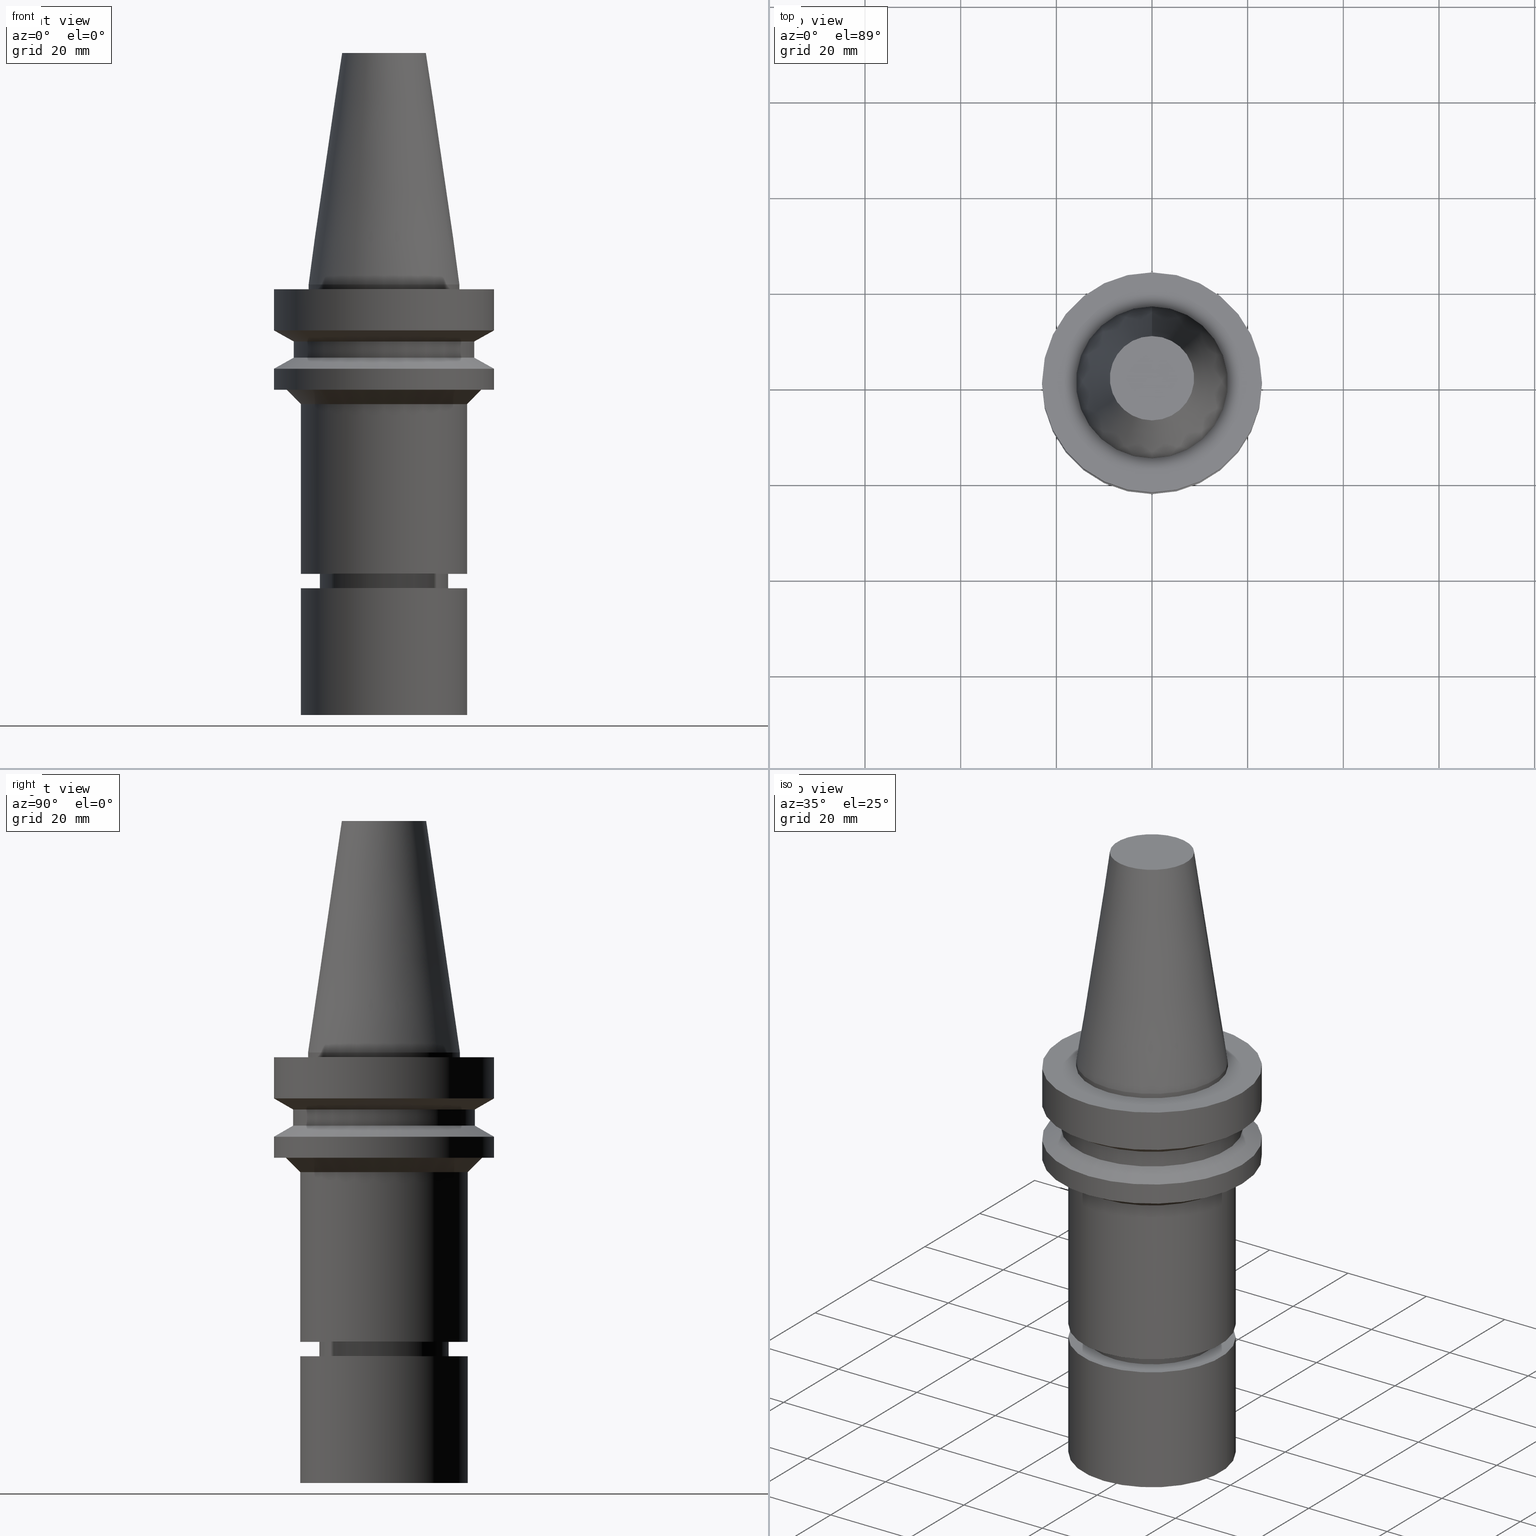
[diagram: canonical four-view strip — front | top / right | iso, engineering-drawing reading convention]
A machine part, canonical four-view strip (front | top / right | iso — engineering-drawing reading convention). The complete STEP part file that produces these views, byte-faithful:
ISO-10303-21;
HEADER;
FILE_DESCRIPTION((''),'1');
FILE_NAME('V:/90_\X2\53D65F9730C730FC30BF\X0\/00_\X2\6DE18DEF30C730FC30BF\X0\/ALL/BBT-BKUS\X2\FF76FF80FF9BFF78FF9E752852A05DE556F3\X0\201801/BBT30-MEGAER/BBT30-MEGAER20-90NL.stp','2018-02-02T07:19:43',(''),(''),'Spatial Interop R21 SP3','Kubotek KeyCreator 2011 V10.0.2 (22737)',' ');
FILE_SCHEMA(('automotive_design'));
ENDSEC;
DATA;
#1=MECHANICAL_DESIGN_GEOMETRIC_PRESENTATION_REPRESENTATION(' ',(#14,#15,#16,#17,#18,#19,#20,#21,#22,#23,#24,#25,#26,#27,#28,#29,#30,#31,#32,#33,#34,#35,#36,#37,#38,#39,#40,#41,#42,#43,#44,#45,#46,#47,#48,#49,#50,#51,#52,#53,#54,#55),#10);
#2=PRODUCT_DEFINITION_CONTEXT('',#56,'design');
#3=APPLICATION_PROTOCOL_DEFINITION('INTERNATIONAL STANDARD','automotive_design',1994,#56);
#4=PRODUCT_CATEGORY_RELATIONSHIP('NONE','NONE',#57,#58);
#5=SHAPE_DEFINITION_REPRESENTATION(#59,#60);
#6=PRODUCT_DEFINITION_CONTEXT('',#61,'design');
#7=APPLICATION_PROTOCOL_DEFINITION('INTERNATIONAL STANDARD','automotive_design',1994,#61);
#8=PRODUCT_CATEGORY_RELATIONSHIP('NONE','NONE',#62,#63);
#9=SHAPE_DEFINITION_REPRESENTATION(#64,#65);
#10= (GEOMETRIC_REPRESENTATION_CONTEXT(3)GLOBAL_UNCERTAINTY_ASSIGNED_CONTEXT((#68))GLOBAL_UNIT_ASSIGNED_CONTEXT((#70,#71,#72))REPRESENTATION_CONTEXT('NONE','WORKSPACE'));
#14=STYLED_ITEM('',(#74),#75);
#15=STYLED_ITEM('',(#76,#77),#78);
#16=STYLED_ITEM('',(#79),#80);
#17=STYLED_ITEM('',(#81),#82);
#18=STYLED_ITEM('',(#83,#84),#85);
#19=STYLED_ITEM('',(#86,#87),#88);
#20=STYLED_ITEM('',(#89),#90);
#21=STYLED_ITEM('',(#91),#92);
#22=STYLED_ITEM('',(#93),#94);
#23=STYLED_ITEM('',(#95,#96),#97);
#24=STYLED_ITEM('',(#98,#99),#100);
#25=STYLED_ITEM('',(#101,#102),#103);
#26=STYLED_ITEM('',(#104,#105),#106);
#27=STYLED_ITEM('',(#107,#108),#109);
#28=STYLED_ITEM('',(#110,#111),#112);
#29=STYLED_ITEM('',(#113,#114),#115);
#30=STYLED_ITEM('',(#116,#117),#118);
#31=STYLED_ITEM('',(#119),#120);
#32=STYLED_ITEM('',(#121,#122),#123);
#33=STYLED_ITEM('',(#124,#125),#126);
#34=STYLED_ITEM('',(#127),#128);
#35=STYLED_ITEM('',(#129),#130);
#36=STYLED_ITEM('',(#131),#132);
#37=STYLED_ITEM('',(#133),#134);
#38=STYLED_ITEM('',(#135),#136);
#39=STYLED_ITEM('',(#137,#138),#139);
#40=STYLED_ITEM('',(#140,#141),#142);
#41=STYLED_ITEM('',(#143),#144);
#42=STYLED_ITEM('',(#145),#146);
#43=STYLED_ITEM('',(#147,#148),#149);
#44=STYLED_ITEM('',(#150,#151),#152);
#45=STYLED_ITEM('',(#153,#154),#155);
#46=STYLED_ITEM('',(#156),#157);
#47=STYLED_ITEM('',(#158),#159);
#48=STYLED_ITEM('',(#160),#161);
#49=STYLED_ITEM('',(#162),#163);
#50=STYLED_ITEM('',(#164,#165),#166);
#51=STYLED_ITEM('',(#167,#168),#169);
#52=STYLED_ITEM('',(#170,#171),#172);
#53=STYLED_ITEM('',(#173,#174),#175);
#54=STYLED_ITEM('',(#176,#177),#178);
#55=STYLED_ITEM('',(#179),#180);
#56=APPLICATION_CONTEXT(' ');
#57=PRODUCT_CATEGORY('part','NONE');
#58=PRODUCT_RELATED_PRODUCT_CATEGORY('detail',' ',(#181));
#59=PRODUCT_DEFINITION_SHAPE('NONE','NONE',#182);
#60=ADVANCED_BREP_SHAPE_REPRESENTATION('Unnamed[1]',(#85,#183),#10);
#61=APPLICATION_CONTEXT(' ');
#62=PRODUCT_CATEGORY('part','NONE');
#63=PRODUCT_RELATED_PRODUCT_CATEGORY('detail',' ',(#184));
#64=PRODUCT_DEFINITION_SHAPE('NONE','NONE',#185);
#65=ADVANCED_BREP_SHAPE_REPRESENTATION('Unnamed[1]',(#175,#186),#10);
#68=UNCERTAINTY_MEASURE_WITH_UNIT(LENGTH_MEASURE(1.0E-006),#70,'','');
#70= (CONVERSION_BASED_UNIT('MILLIMETRE',#189)LENGTH_UNIT()NAMED_UNIT(#192));
#71= (NAMED_UNIT(#194)PLANE_ANGLE_UNIT()SI_UNIT($,.RADIAN.));
#72= (NAMED_UNIT(#194)SOLID_ANGLE_UNIT()SI_UNIT($,.STERADIAN.));
#74=PRESENTATION_STYLE_ASSIGNMENT((#200));
#75=EDGE_CURVE('Unnamed[1]',#201,#201,#202,.T.);
#76=PRESENTATION_STYLE_ASSIGNMENT((#203));
#77=PRESENTATION_STYLE_ASSIGNMENT((#204));
#78=ADVANCED_FACE('Unnamed[1]',(#205,#206),#207,.T.);
#79=PRESENTATION_STYLE_ASSIGNMENT((#208));
#80=EDGE_CURVE('Unnamed[1]',#209,#209,#210,.T.);
#81=PRESENTATION_STYLE_ASSIGNMENT((#211));
#82=EDGE_CURVE('Unnamed[1]',#212,#212,#213,.T.);
#83=PRESENTATION_STYLE_ASSIGNMENT((#214));
#84=PRESENTATION_STYLE_ASSIGNMENT((#215));
#85=MANIFOLD_SOLID_BREP('Unnamed[1]',#216);
#86=PRESENTATION_STYLE_ASSIGNMENT((#217));
#87=PRESENTATION_STYLE_ASSIGNMENT((#218));
#88=ADVANCED_FACE('Unnamed[1]',(#219,#220),#221,.T.);
#89=PRESENTATION_STYLE_ASSIGNMENT((#222));
#90=EDGE_CURVE('Unnamed[1]',#223,#223,#224,.T.);
#91=PRESENTATION_STYLE_ASSIGNMENT((#225));
#92=EDGE_CURVE('Unnamed[1]',#226,#226,#227,.T.);
#93=PRESENTATION_STYLE_ASSIGNMENT((#228));
#94=EDGE_CURVE('Unnamed[1]',#229,#229,#230,.T.);
#95=PRESENTATION_STYLE_ASSIGNMENT((#231));
#96=PRESENTATION_STYLE_ASSIGNMENT((#232));
#97=ADVANCED_FACE('Unnamed[1]',(#233,#234),#235,.T.);
#98=PRESENTATION_STYLE_ASSIGNMENT((#236));
#99=PRESENTATION_STYLE_ASSIGNMENT((#237));
#100=ADVANCED_FACE('Unnamed[1]',(#238,#239),#240,.T.);
#101=PRESENTATION_STYLE_ASSIGNMENT((#241));
#102=PRESENTATION_STYLE_ASSIGNMENT((#242));
#103=ADVANCED_FACE('Unnamed[1]',(#243),#244,.T.);
#104=PRESENTATION_STYLE_ASSIGNMENT((#245));
#105=PRESENTATION_STYLE_ASSIGNMENT((#246));
#106=ADVANCED_FACE('Unnamed[1]',(#247,#248),#249,.T.);
#107=PRESENTATION_STYLE_ASSIGNMENT((#250));
#108=PRESENTATION_STYLE_ASSIGNMENT((#251));
#109=ADVANCED_FACE('Unnamed[1]',(#252,#253),#254,.T.);
#110=PRESENTATION_STYLE_ASSIGNMENT((#255));
#111=PRESENTATION_STYLE_ASSIGNMENT((#256));
#112=ADVANCED_FACE('Unnamed[1]',(#257,#258),#259,.T.);
#113=PRESENTATION_STYLE_ASSIGNMENT((#260));
#114=PRESENTATION_STYLE_ASSIGNMENT((#261));
#115=ADVANCED_FACE('Unnamed[1]',(#262,#263),#264,.T.);
#116=PRESENTATION_STYLE_ASSIGNMENT((#265));
#117=PRESENTATION_STYLE_ASSIGNMENT((#266));
#118=ADVANCED_FACE('Unnamed[1]',(#267,#268),#269,.T.);
#119=PRESENTATION_STYLE_ASSIGNMENT((#270));
#120=EDGE_CURVE('Unnamed[1]',#271,#271,#272,.T.);
#121=PRESENTATION_STYLE_ASSIGNMENT((#273));
#122=PRESENTATION_STYLE_ASSIGNMENT((#274));
#123=ADVANCED_FACE('Unnamed[1]',(#275,#276),#277,.T.);
#124=PRESENTATION_STYLE_ASSIGNMENT((#278));
#125=PRESENTATION_STYLE_ASSIGNMENT((#279));
#126=ADVANCED_FACE('Unnamed[1]',(#280),#281,.T.);
#127=PRESENTATION_STYLE_ASSIGNMENT((#282));
#128=EDGE_CURVE('Unnamed[1]',#283,#283,#284,.T.);
#129=PRESENTATION_STYLE_ASSIGNMENT((#285));
#130=EDGE_CURVE('Unnamed[1]',#286,#286,#287,.T.);
#131=PRESENTATION_STYLE_ASSIGNMENT((#288));
#132=EDGE_CURVE('Unnamed[1]',#289,#289,#290,.T.);
#133=PRESENTATION_STYLE_ASSIGNMENT((#291));
#134=EDGE_CURVE('Unnamed[1]',#292,#292,#293,.T.);
#135=PRESENTATION_STYLE_ASSIGNMENT((#294));
#136=EDGE_CURVE('Unnamed[1]',#295,#295,#296,.T.);
#137=PRESENTATION_STYLE_ASSIGNMENT((#297));
#138=PRESENTATION_STYLE_ASSIGNMENT((#298));
#139=ADVANCED_FACE('Unnamed[1]',(#299,#300),#301,.T.);
#140=PRESENTATION_STYLE_ASSIGNMENT((#302));
#141=PRESENTATION_STYLE_ASSIGNMENT((#303));
#142=ADVANCED_FACE('Unnamed[1]',(#304,#305),#306,.T.);
#143=PRESENTATION_STYLE_ASSIGNMENT((#307));
#144=EDGE_CURVE('Unnamed[1]',#308,#308,#309,.T.);
#145=PRESENTATION_STYLE_ASSIGNMENT((#310));
#146=EDGE_CURVE('Unnamed[1]',#311,#311,#312,.T.);
#147=PRESENTATION_STYLE_ASSIGNMENT((#313));
#148=PRESENTATION_STYLE_ASSIGNMENT((#314));
#149=ADVANCED_FACE('Unnamed[1]',(#315,#316),#317,.T.);
#150=PRESENTATION_STYLE_ASSIGNMENT((#318));
#151=PRESENTATION_STYLE_ASSIGNMENT((#319));
#152=ADVANCED_FACE('Unnamed[1]',(#320,#321),#322,.T.);
#153=PRESENTATION_STYLE_ASSIGNMENT((#323));
#154=PRESENTATION_STYLE_ASSIGNMENT((#324));
#155=ADVANCED_FACE('Unnamed[1]',(#325,#326),#327,.T.);
#156=PRESENTATION_STYLE_ASSIGNMENT((#328));
#157=EDGE_CURVE('Unnamed[1]',#329,#329,#330,.T.);
#158=PRESENTATION_STYLE_ASSIGNMENT((#331));
#159=EDGE_CURVE('Unnamed[1]',#332,#332,#333,.T.);
#160=PRESENTATION_STYLE_ASSIGNMENT((#334));
#161=EDGE_CURVE('Unnamed[1]',#335,#335,#336,.T.);
#162=PRESENTATION_STYLE_ASSIGNMENT((#337));
#163=EDGE_CURVE('Unnamed[1]',#338,#338,#339,.T.);
#164=PRESENTATION_STYLE_ASSIGNMENT((#340));
#165=PRESENTATION_STYLE_ASSIGNMENT((#341));
#166=ADVANCED_FACE('Unnamed[1]',(#342,#343),#344,.T.);
#167=PRESENTATION_STYLE_ASSIGNMENT((#345));
#168=PRESENTATION_STYLE_ASSIGNMENT((#346));
#169=ADVANCED_FACE('Unnamed[1]',(#347),#348,.T.);
#170=PRESENTATION_STYLE_ASSIGNMENT((#349));
#171=PRESENTATION_STYLE_ASSIGNMENT((#350));
#172=ADVANCED_FACE('Unnamed[1]',(#351,#352),#353,.T.);
#173=PRESENTATION_STYLE_ASSIGNMENT((#354));
#174=PRESENTATION_STYLE_ASSIGNMENT((#355));
#175=MANIFOLD_SOLID_BREP('Unnamed[1]',#356);
#176=PRESENTATION_STYLE_ASSIGNMENT((#357));
#177=PRESENTATION_STYLE_ASSIGNMENT((#358));
#178=ADVANCED_FACE('Unnamed[1]',(#359),#360,.T.);
#179=PRESENTATION_STYLE_ASSIGNMENT((#361));
#180=EDGE_CURVE('Unnamed[1]',#362,#362,#363,.T.);
#181=PRODUCT('Unnamed[1]','Unnamed[1]','PART-Unnamed[1]-DESC',(#364));
#182=PRODUCT_DEFINITION('NONE','NONE',#365,#2);
#183=AXIS2_PLACEMENT_3D('',#366,#367,#368);
#184=PRODUCT('Unnamed[1]','Unnamed[1]','PART-Unnamed[1]-DESC',(#369));
#185=PRODUCT_DEFINITION('NONE','NONE',#370,#6);
#186=AXIS2_PLACEMENT_3D('',#371,#372,#373);
#189=LENGTH_MEASURE_WITH_UNIT(LENGTH_MEASURE(1.0),#374);
#192=DIMENSIONAL_EXPONENTS(1.0,0.0,0.0,0.0,0.0,0.0,0.0);
#194=DIMENSIONAL_EXPONENTS(0.0,0.0,0.0,0.0,0.0,0.0,0.0);
#200=CURVE_STYLE('',#375,POSITIVE_LENGTH_MEASURE(1000.0),#376);
#201=VERTEX_POINT('',#377);
#202=CIRCLE('',#378,13.4999999999908);
#203=SURFACE_STYLE_USAGE(.BOTH.,#379);
#204=CURVE_STYLE('',#380,POSITIVE_LENGTH_MEASURE(1000.0),#381);
#205=FACE_BOUND('',#382,.T.);
#206=FACE_OUTER_BOUND('',#383,.T.);
#207=PLANE('',#384);
#208=CURVE_STYLE('',#385,POSITIVE_LENGTH_MEASURE(1000.0),#386);
#209=VERTEX_POINT('',#387);
#210=CIRCLE('',#388,12.4999999999999);
#211=CURVE_STYLE('',#389,POSITIVE_LENGTH_MEASURE(1000.0),#390);
#212=VERTEX_POINT('',#391);
#213=CIRCLE('',#392,23.0);
#214=SURFACE_STYLE_USAGE(.BOTH.,#393);
#215=CURVE_STYLE('',#394,POSITIVE_LENGTH_MEASURE(1000.0),#395);
#216=CLOSED_SHELL('',(#178,#97,#142,#123,#112,#139,#88,#172,#100,#78,#166,#149,#109,#118,#152,#155,#115,#126));
#217=SURFACE_STYLE_USAGE(.BOTH.,#396);
#218=CURVE_STYLE('',#397,POSITIVE_LENGTH_MEASURE(1000.0),#398);
#219=FACE_BOUND('',#399,.T.);
#220=FACE_BOUND('',#400,.T.);
#221=CYLINDRICAL_SURFACE('',#401,19.0);
#222=CURVE_STYLE('',#402,POSITIVE_LENGTH_MEASURE(1000.0),#403);
#223=VERTEX_POINT('',#404);
#224=CIRCLE('',#405,11.3999999999978);
#225=CURVE_STYLE('',#406,POSITIVE_LENGTH_MEASURE(1000.0),#407);
#226=VERTEX_POINT('',#408);
#227=CIRCLE('',#409,15.875);
#228=CURVE_STYLE('',#410,POSITIVE_LENGTH_MEASURE(1000.0),#411);
#229=VERTEX_POINT('',#412);
#230=CIRCLE('',#413,17.5);
#231=SURFACE_STYLE_USAGE(.BOTH.,#414);
#232=CURVE_STYLE('',#415,POSITIVE_LENGTH_MEASURE(1000.0),#416);
#233=FACE_BOUND('',#417,.T.);
#234=FACE_BOUND('',#418,.T.);
#235=CONICAL_SURFACE('',#419,12.3457500009933,0.144815870013618);
#236=SURFACE_STYLE_USAGE(.BOTH.,#420);
#237=CURVE_STYLE('',#421,POSITIVE_LENGTH_MEASURE(1000.0),#422);
#238=FACE_BOUND('',#423,.T.);
#239=FACE_BOUND('',#424,.T.);
#240=CYLINDRICAL_SURFACE('',#425,23.0);
#241=SURFACE_STYLE_USAGE(.BOTH.,#426);
#242=CURVE_STYLE('',#427,POSITIVE_LENGTH_MEASURE(1000.0),#428);
#243=FACE_OUTER_BOUND('',#429,.T.);
#244=PLANE('',#430);
#245=SURFACE_STYLE_USAGE(.BOTH.,#431);
#246=CURVE_STYLE('',#432,POSITIVE_LENGTH_MEASURE(1000.0),#433);
#247=FACE_BOUND('',#434,.T.);
#248=FACE_BOUND('',#435,.T.);
#249=CYLINDRICAL_SURFACE('',#436,17.5);
#250=SURFACE_STYLE_USAGE(.BOTH.,#437);
#251=CURVE_STYLE('',#438,POSITIVE_LENGTH_MEASURE(1000.0),#439);
#252=FACE_BOUND('',#440,.T.);
#253=FACE_OUTER_BOUND('',#441,.T.);
#254=PLANE('',#442);
#255=SURFACE_STYLE_USAGE(.BOTH.,#443);
#256=CURVE_STYLE('',#444,POSITIVE_LENGTH_MEASURE(1000.0),#445);
#257=FACE_BOUND('',#446,.T.);
#258=FACE_BOUND('',#447,.T.);
#259=CYLINDRICAL_SURFACE('',#448,23.0);
#260=SURFACE_STYLE_USAGE(.BOTH.,#449);
#261=CURVE_STYLE('',#450,POSITIVE_LENGTH_MEASURE(1000.0),#451);
#262=FACE_BOUND('',#452,.T.);
#263=FACE_BOUND('',#453,.T.);
#264=CONICAL_SURFACE('',#454,11.9499999999988,0.523598775598661);
#265=SURFACE_STYLE_USAGE(.BOTH.,#455);
#266=CURVE_STYLE('',#456,POSITIVE_LENGTH_MEASURE(1000.0),#457);
#267=FACE_BOUND('',#458,.T.);
#268=FACE_BOUND('',#459,.T.);
#269=CYLINDRICAL_SURFACE('',#460,13.4999999999956);
#270=CURVE_STYLE('',#461,POSITIVE_LENGTH_MEASURE(1000.0),#462);
#271=VERTEX_POINT('',#463);
#272=CIRCLE('',#464,17.4999999999999);
#273=SURFACE_STYLE_USAGE(.BOTH.,#465);
#274=CURVE_STYLE('',#466,POSITIVE_LENGTH_MEASURE(1000.0),#467);
#275=FACE_OUTER_BOUND('',#468,.T.);
#276=FACE_BOUND('',#469,.T.);
#277=PLANE('',#470);
#278=SURFACE_STYLE_USAGE(.BOTH.,#471);
#279=CURVE_STYLE('',#472,POSITIVE_LENGTH_MEASURE(1000.0),#473);
#280=FACE_OUTER_BOUND('',#474,.T.);
#281=PLANE('',#475);
#282=CURVE_STYLE('',#476,POSITIVE_LENGTH_MEASURE(1000.0),#477);
#283=VERTEX_POINT('',#478);
#284=CIRCLE('',#479,20.4999999999968);
#285=CURVE_STYLE('',#480,POSITIVE_LENGTH_MEASURE(1000.0),#481);
#286=VERTEX_POINT('',#482);
#287=CIRCLE('',#483,19.0);
#288=CURVE_STYLE('',#484,POSITIVE_LENGTH_MEASURE(1000.0),#485);
#289=VERTEX_POINT('',#486);
#290=CIRCLE('',#487,13.5000000000005);
#291=CURVE_STYLE('',#488,POSITIVE_LENGTH_MEASURE(1000.0),#489);
#292=VERTEX_POINT('',#490);
#293=CIRCLE('',#491,12.4999999999998);
#294=CURVE_STYLE('',#492,POSITIVE_LENGTH_MEASURE(1000.0),#493);
#295=VERTEX_POINT('',#494);
#296=CIRCLE('',#495,19.0);
#297=SURFACE_STYLE_USAGE(.BOTH.,#496);
#298=CURVE_STYLE('',#497,POSITIVE_LENGTH_MEASURE(1000.0),#498);
#299=FACE_BOUND('',#499,.T.);
#300=FACE_BOUND('',#500,.T.);
#301=CONICAL_SURFACE('',#501,21.0,1.04719755058881);
#302=SURFACE_STYLE_USAGE(.BOTH.,#502);
#303=CURVE_STYLE('',#503,POSITIVE_LENGTH_MEASURE(1000.0),#504);
#304=FACE_BOUND('',#505,.T.);
#305=FACE_BOUND('',#506,.T.);
#306=CYLINDRICAL_SURFACE('',#507,15.875);
#307=CURVE_STYLE('',#508,POSITIVE_LENGTH_MEASURE(1000.0),#509);
#308=VERTEX_POINT('',#510);
#309=CIRCLE('',#511,23.0);
#310=CURVE_STYLE('',#512,POSITIVE_LENGTH_MEASURE(1000.0),#513);
#311=VERTEX_POINT('',#514);
#312=CIRCLE('',#515,17.5);
#313=SURFACE_STYLE_USAGE(.BOTH.,#516);
#314=CURVE_STYLE('',#517,POSITIVE_LENGTH_MEASURE(1000.0),#518);
#315=FACE_BOUND('',#519,.T.);
#316=FACE_BOUND('',#520,.T.);
#317=CYLINDRICAL_SURFACE('',#521,17.4999999999984);
#318=SURFACE_STYLE_USAGE(.BOTH.,#522);
#319=CURVE_STYLE('',#523,POSITIVE_LENGTH_MEASURE(1000.0),#524);
#320=FACE_BOUND('',#525,.T.);
#321=FACE_BOUND('',#526,.T.);
#322=CONICAL_SURFACE('',#527,13.0000000000002,1.04719755119484);
#323=SURFACE_STYLE_USAGE(.BOTH.,#528);
#324=CURVE_STYLE('',#529,POSITIVE_LENGTH_MEASURE(1000.0),#530);
#325=FACE_BOUND('',#531,.T.);
#326=FACE_BOUND('',#532,.T.);
#327=CYLINDRICAL_SURFACE('',#533,12.4999999999999);
#328=CURVE_STYLE('',#534,POSITIVE_LENGTH_MEASURE(1000.0),#535);
#329=VERTEX_POINT('',#536);
#330=CIRCLE('',#537,17.4999999999968);
#331=CURVE_STYLE('',#538,POSITIVE_LENGTH_MEASURE(1000.0),#539);
#332=VERTEX_POINT('',#540);
#333=CIRCLE('',#541,8.81650000198669);
#334=CURVE_STYLE('',#542,POSITIVE_LENGTH_MEASURE(1000.0),#543);
#335=VERTEX_POINT('',#544);
#336=CIRCLE('',#545,23.0);
#337=CURVE_STYLE('',#546,POSITIVE_LENGTH_MEASURE(1000.0),#547);
#338=VERTEX_POINT('',#548);
#339=CIRCLE('',#549,15.875);
#340=SURFACE_STYLE_USAGE(.BOTH.,#550);
#341=CURVE_STYLE('',#551,POSITIVE_LENGTH_MEASURE(1000.0),#552);
#342=FACE_BOUND('',#553,.T.);
#343=FACE_BOUND('',#554,.T.);
#344=CONICAL_SURFACE('',#555,18.9999999999968,0.785398163397404);
#345=SURFACE_STYLE_USAGE(.BOTH.,#556);
#346=CURVE_STYLE('',#557,POSITIVE_LENGTH_MEASURE(1000.0),#558);
#347=FACE_OUTER_BOUND('',#559,.T.);
#348=PLANE('',#560);
#349=SURFACE_STYLE_USAGE(.BOTH.,#561);
#350=CURVE_STYLE('',#562,POSITIVE_LENGTH_MEASURE(1000.0),#563);
#351=FACE_BOUND('',#564,.T.);
#352=FACE_BOUND('',#565,.T.);
#353=CONICAL_SURFACE('',#566,21.0,1.04719755058882);
#354=SURFACE_STYLE_USAGE(.BOTH.,#567);
#355=CURVE_STYLE('',#568,POSITIVE_LENGTH_MEASURE(1000.0),#569);
#356=CLOSED_SHELL('',(#103,#169,#106));
#357=SURFACE_STYLE_USAGE(.BOTH.,#570);
#358=CURVE_STYLE('',#571,POSITIVE_LENGTH_MEASURE(1000.0),#572);
#359=FACE_OUTER_BOUND('',#573,.T.);
#360=PLANE('',#574);
#361=CURVE_STYLE('',#575,POSITIVE_LENGTH_MEASURE(1000.0),#576);
#362=VERTEX_POINT('',#577);
#363=CIRCLE('',#578,23.0);
#364=PRODUCT_CONTEXT('',#56,'mechanical');
#365=PRODUCT_DEFINITION_FORMATION_WITH_SPECIFIED_SOURCE(' ','NONE',#181,.NOT_KNOWN.);
#366=CARTESIAN_POINT('',(0.0,0.0,0.0));
#367=DIRECTION('',(0.0,0.0,1.0));
#368=DIRECTION('',(1.0,0.0,0.0));
#369=PRODUCT_CONTEXT('',#61,'mechanical');
#370=PRODUCT_DEFINITION_FORMATION_WITH_SPECIFIED_SOURCE(' ','NONE',#184,.NOT_KNOWN.);
#371=CARTESIAN_POINT('',(0.0,0.0,0.0));
#372=DIRECTION('',(0.0,0.0,1.0));
#373=DIRECTION('',(1.0,0.0,0.0));
#374= (NAMED_UNIT(#192)LENGTH_UNIT()SI_UNIT(.MILLI.,.METRE.));
#375=DRAUGHTING_PRE_DEFINED_CURVE_FONT('continuous');
#376=COLOUR_RGB('',0.0,1.0,0.0);
#377=CARTESIAN_POINT('',(3.70455656742072E-015,13.4999999999908,-60.4999999999996));
#378=AXIS2_PLACEMENT_3D('',#580,#581,#582);
#379=SURFACE_SIDE_STYLE('',(#583));
#380=DRAUGHTING_PRE_DEFINED_CURVE_FONT('continuous');
#381=COLOUR_RGB('',0.0,1.0,0.0);
#382=EDGE_LOOP('',(#584));
#383=EDGE_LOOP('',(#585));
#384=AXIS2_PLACEMENT_3D('',#586,#587,#588);
#385=DRAUGHTING_PRE_DEFINED_CURVE_FONT('continuous');
#386=COLOUR_RGB('',0.0,1.0,0.0);
#387=CARTESIAN_POINT('',(4.09642365087913E-015,12.4999999999999,-66.8996751345975));
#388=AXIS2_PLACEMENT_3D('',#589,#590,#591);
#389=DRAUGHTING_PRE_DEFINED_CURVE_FONT('continuous');
#390=COLOUR_RGB('',0.0,1.0,0.0);
#391=CARTESIAN_POINT('',(1.07768918324967E-015,23.0,-17.6));
#392=AXIS2_PLACEMENT_3D('',#592,#593,#594);
#393=SURFACE_SIDE_STYLE('',(#595));
#394=DRAUGHTING_PRE_DEFINED_CURVE_FONT('continuous');
#395=COLOUR_RGB('',0.0,1.0,0.0);
#396=SURFACE_SIDE_STYLE('',(#596));
#397=DRAUGHTING_PRE_DEFINED_CURVE_FONT('continuous');
#398=COLOUR_RGB('',0.0,1.0,0.0);
#399=EDGE_LOOP('',(#597));
#400=EDGE_LOOP('',(#598));
#401=AXIS2_PLACEMENT_3D('',#599,#600,#601);
#402=DRAUGHTING_PRE_DEFINED_CURVE_FONT('continuous');
#403=COLOUR_RGB('',0.0,1.0,0.0);
#404=CARTESIAN_POINT('',(4.9108336645809E-015,11.3999999999978,-80.2000000000002));
#405=AXIS2_PLACEMENT_3D('',#602,#603,#604);
#406=DRAUGHTING_PRE_DEFINED_CURVE_FONT('continuous');
#407=COLOUR_RGB('',0.0,1.0,0.0);
#408=CARTESIAN_POINT('',(6.12323399573675E-017,15.875,-0.999999999999998));
#409=AXIS2_PLACEMENT_3D('',#605,#606,#607);
#410=DRAUGHTING_PRE_DEFINED_CURVE_FONT('continuous');
#411=COLOUR_RGB('',0.0,1.0,0.0);
#412=CARTESIAN_POINT('',(3.88825452162421E-015,17.5,-63.5000152587891));
#413=AXIS2_PLACEMENT_3D('',#608,#609,#610);
#414=SURFACE_SIDE_STYLE('',(#611));
#415=DRAUGHTING_PRE_DEFINED_CURVE_FONT('continuous');
#416=COLOUR_RGB('',0.0,1.0,0.0);
#417=EDGE_LOOP('',(#612));
#418=EDGE_LOOP('',(#613));
#419=AXIS2_PLACEMENT_3D('',#614,#615,#616);
#420=SURFACE_SIDE_STYLE('',(#617));
#421=DRAUGHTING_PRE_DEFINED_CURVE_FONT('continuous');
#422=COLOUR_RGB('',0.0,1.0,0.0);
#423=EDGE_LOOP('',(#618));
#424=EDGE_LOOP('',(#619));
#425=AXIS2_PLACEMENT_3D('',#620,#621,#622);
#426=SURFACE_SIDE_STYLE('',(#623));
#427=DRAUGHTING_PRE_DEFINED_CURVE_FONT('continuous');
#428=COLOUR_RGB('',0.0,1.0,0.0);
#429=EDGE_LOOP('',(#624));
#430=AXIS2_PLACEMENT_3D('',#625,#626,#627);
#431=SURFACE_SIDE_STYLE('',(#628));
#432=DRAUGHTING_PRE_DEFINED_CURVE_FONT('continuous');
#433=COLOUR_RGB('',0.0,1.0,0.0);
#434=EDGE_LOOP('',(#629));
#435=EDGE_LOOP('',(#630));
#436=AXIS2_PLACEMENT_3D('',#631,#632,#633);
#437=SURFACE_SIDE_STYLE('',(#634));
#438=DRAUGHTING_PRE_DEFINED_CURVE_FONT('continuous');
#439=COLOUR_RGB('',0.0,1.0,0.0);
#440=EDGE_LOOP('',(#635));
#441=EDGE_LOOP('',(#636));
#442=AXIS2_PLACEMENT_3D('',#637,#638,#639);
#443=SURFACE_SIDE_STYLE('',(#640));
#444=DRAUGHTING_PRE_DEFINED_CURVE_FONT('continuous');
#445=COLOUR_RGB('',0.0,1.0,0.0);
#446=EDGE_LOOP('',(#641));
#447=EDGE_LOOP('',(#642));
#448=AXIS2_PLACEMENT_3D('',#643,#644,#645);
#449=SURFACE_SIDE_STYLE('',(#646));
#450=DRAUGHTING_PRE_DEFINED_CURVE_FONT('continuous');
#451=COLOUR_RGB('',0.0,1.0,0.0);
#452=EDGE_LOOP('',(#647));
#453=EDGE_LOOP('',(#648));
#454=AXIS2_PLACEMENT_3D('',#649,#650,#651);
#455=SURFACE_SIDE_STYLE('',(#652));
#456=DRAUGHTING_PRE_DEFINED_CURVE_FONT('continuous');
#457=COLOUR_RGB('',0.0,1.0,0.0);
#458=EDGE_LOOP('',(#653));
#459=EDGE_LOOP('',(#654));
#460=AXIS2_PLACEMENT_3D('',#655,#656,#657);
#461=DRAUGHTING_PRE_DEFINED_CURVE_FONT('continuous');
#462=COLOUR_RGB('',0.0,1.0,0.0);
#463=CARTESIAN_POINT('',(3.70455656742073E-015,17.4999999999999,-60.4999999999998));
#464=AXIS2_PLACEMENT_3D('',#658,#659,#660);
#465=SURFACE_SIDE_STYLE('',(#661));
#466=DRAUGHTING_PRE_DEFINED_CURVE_FONT('continuous');
#467=COLOUR_RGB('',0.0,1.0,0.0);
#468=EDGE_LOOP('',(#662));
#469=EDGE_LOOP('',(#663));
#470=AXIS2_PLACEMENT_3D('',#664,#665,#666);
#471=SURFACE_SIDE_STYLE('',(#667));
#472=DRAUGHTING_PRE_DEFINED_CURVE_FONT('continuous');
#473=COLOUR_RGB('',0.0,1.0,0.0);
#474=EDGE_LOOP('',(#668));
#475=AXIS2_PLACEMENT_3D('',#669,#670,#671);
#476=DRAUGHTING_PRE_DEFINED_CURVE_FONT('continuous');
#477=COLOUR_RGB('',0.0,1.0,0.0);
#478=CARTESIAN_POINT('',(1.34711147906209E-015,20.4999999999968,-22.0));
#479=AXIS2_PLACEMENT_3D('',#672,#673,#674);
#480=DRAUGHTING_PRE_DEFINED_CURVE_FONT('continuous');
#481=COLOUR_RGB('',0.0,1.0,0.0);
#482=CARTESIAN_POINT('',(7.29240495619202E-016,19.0,-11.90940108));
#483=AXIS2_PLACEMENT_3D('',#675,#676,#677);
#484=DRAUGHTING_PRE_DEFINED_CURVE_FONT('continuous');
#485=COLOUR_RGB('',0.0,1.0,0.0);
#486=CARTESIAN_POINT('',(4.06107114292147E-015,13.5000000000005,-66.3223248654052));
#487=AXIS2_PLACEMENT_3D('',#678,#679,#680);
#488=DRAUGHTING_PRE_DEFINED_CURVE_FONT('continuous');
#489=COLOUR_RGB('',0.0,1.0,0.0);
#490=CARTESIAN_POINT('',(4.79417038832104E-015,12.4999999999998,-78.2947441116725));
#491=AXIS2_PLACEMENT_3D('',#681,#682,#683);
#492=DRAUGHTING_PRE_DEFINED_CURVE_FONT('continuous');
#493=COLOUR_RGB('',0.0,1.0,0.0);
#494=CARTESIAN_POINT('',(9.36279151221199E-016,19.0,-15.29059892));
#495=AXIS2_PLACEMENT_3D('',#684,#685,#686);
#496=SURFACE_SIDE_STYLE('',(#687));
#497=DRAUGHTING_PRE_DEFINED_CURVE_FONT('continuous');
#498=COLOUR_RGB('',0.0,1.0,0.0);
#499=EDGE_LOOP('',(#688));
#500=EDGE_LOOP('',(#689));
#501=AXIS2_PLACEMENT_3D('',#690,#691,#692);
#502=SURFACE_SIDE_STYLE('',(#693));
#503=DRAUGHTING_PRE_DEFINED_CURVE_FONT('continuous');
#504=COLOUR_RGB('',0.0,1.0,0.0);
#505=EDGE_LOOP('',(#694));
#506=EDGE_LOOP('',(#695));
#507=AXIS2_PLACEMENT_3D('',#696,#697,#698);
#508=DRAUGHTING_PRE_DEFINED_CURVE_FONT('continuous');
#509=COLOUR_RGB('',0.0,1.0,0.0);
#510=CARTESIAN_POINT('',(5.87830463590729E-016,23.0,-9.59999999999999));
#511=AXIS2_PLACEMENT_3D('',#699,#700,#701);
#512=DRAUGHTING_PRE_DEFINED_CURVE_FONT('continuous');
#513=COLOUR_RGB('',0.0,1.0,0.0);
#514=CARTESIAN_POINT('',(5.51091059616309E-015,17.5,-90.0));
#515=AXIS2_PLACEMENT_3D('',#702,#703,#704);
#516=SURFACE_SIDE_STYLE('',(#705));
#517=DRAUGHTING_PRE_DEFINED_CURVE_FONT('continuous');
#518=COLOUR_RGB('',0.0,1.0,0.0);
#519=EDGE_LOOP('',(#706));
#520=EDGE_LOOP('',(#707));
#521=AXIS2_PLACEMENT_3D('',#708,#709,#710);
#522=SURFACE_SIDE_STYLE('',(#711));
#523=DRAUGHTING_PRE_DEFINED_CURVE_FONT('continuous');
#524=COLOUR_RGB('',0.0,1.0,0.0);
#525=EDGE_LOOP('',(#712));
#526=EDGE_LOOP('',(#713));
#527=AXIS2_PLACEMENT_3D('',#714,#715,#716);
#528=SURFACE_SIDE_STYLE('',(#717));
#529=DRAUGHTING_PRE_DEFINED_CURVE_FONT('continuous');
#530=COLOUR_RGB('',0.0,1.0,0.0);
#531=EDGE_LOOP('',(#718));
#532=EDGE_LOOP('',(#719));
#533=AXIS2_PLACEMENT_3D('',#720,#721,#722);
#534=DRAUGHTING_PRE_DEFINED_CURVE_FONT('continuous');
#535=COLOUR_RGB('',0.0,1.0,0.0);
#536=CARTESIAN_POINT('',(1.53080849893421E-015,17.4999999999968,-25.0000000000003));
#537=AXIS2_PLACEMENT_3D('',#723,#724,#725);
#538=DRAUGHTING_PRE_DEFINED_CURVE_FONT('continuous');
#539=COLOUR_RGB('',0.0,1.0,0.0);
#540=CARTESIAN_POINT('',(-2.96364525393659E-015,8.81650000198669,48.4));
#541=AXIS2_PLACEMENT_3D('',#726,#727,#728);
#542=DRAUGHTING_PRE_DEFINED_CURVE_FONT('continuous');
#543=COLOUR_RGB('',0.0,1.0,0.0);
#544=CARTESIAN_POINT('',(1.34711147906209E-015,23.0,-22.0));
#545=AXIS2_PLACEMENT_3D('',#729,#730,#731);
#546=DRAUGHTING_PRE_DEFINED_CURVE_FONT('continuous');
#547=COLOUR_RGB('',0.0,1.0,0.0);
#548=CARTESIAN_POINT('',(-1.95674482349743E-031,15.875,1.94412679364642E-015));
#549=AXIS2_PLACEMENT_3D('',#732,#733,#734);
#550=SURFACE_SIDE_STYLE('',(#735));
#551=DRAUGHTING_PRE_DEFINED_CURVE_FONT('continuous');
#552=COLOUR_RGB('',0.0,1.0,0.0);
#553=EDGE_LOOP('',(#736));
#554=EDGE_LOOP('',(#737));
#555=AXIS2_PLACEMENT_3D('',#738,#739,#740);
#556=SURFACE_SIDE_STYLE('',(#741));
#557=DRAUGHTING_PRE_DEFINED_CURVE_FONT('continuous');
#558=COLOUR_RGB('',0.0,1.0,0.0);
#559=EDGE_LOOP('',(#742));
#560=AXIS2_PLACEMENT_3D('',#743,#744,#745);
#561=SURFACE_SIDE_STYLE('',(#746));
#562=DRAUGHTING_PRE_DEFINED_CURVE_FONT('continuous');
#563=COLOUR_RGB('',0.0,1.0,0.0);
#564=EDGE_LOOP('',(#747));
#565=EDGE_LOOP('',(#748));
#566=AXIS2_PLACEMENT_3D('',#749,#750,#751);
#567=SURFACE_SIDE_STYLE('',(#752));
#568=DRAUGHTING_PRE_DEFINED_CURVE_FONT('continuous');
#569=COLOUR_RGB('',0.0,1.0,0.0);
#570=SURFACE_SIDE_STYLE('',(#753));
#571=DRAUGHTING_PRE_DEFINED_CURVE_FONT('continuous');
#572=COLOUR_RGB('',0.0,1.0,0.0);
#573=EDGE_LOOP('',(#754));
#574=AXIS2_PLACEMENT_3D('',#755,#756,#757);
#575=DRAUGHTING_PRE_DEFINED_CURVE_FONT('continuous');
#576=COLOUR_RGB('',0.0,1.0,0.0);
#577=CARTESIAN_POINT('',(6.12323399573674E-017,23.0,-0.999999999999997));
#578=AXIS2_PLACEMENT_3D('',#758,#759,#760);
#580=CARTESIAN_POINT('',(3.70455656742072E-015,7.40911313484144E-015,-60.4999999999996));
#581=DIRECTION('',(6.12323399573677E-017,1.22464679914717E-016,-1.0));
#582=DIRECTION('',(-1.23259516440734E-032,1.0,1.22464679914717E-016));
#583=SURFACE_STYLE_FILL_AREA(#761);
#584=ORIENTED_EDGE('',*,*,#128,.F.);
#585=ORIENTED_EDGE('',*,*,#161,.T.);
#586=CARTESIAN_POINT('',(1.34711147906209E-015,21.7499999999984,-22.0));
#587=DIRECTION('',(6.12323399573677E-017,1.22464679914735E-016,-1.0));
#588=DIRECTION('',(-1.23259516440783E-032,1.0,1.22464679914735E-016));
#589=CARTESIAN_POINT('',(4.09642365087913E-015,8.19284730175826E-015,-66.8996751345975));
#590=DIRECTION('',(6.12323399573677E-017,1.22464679914672E-016,-1.0));
#591=DIRECTION('',(-1.23259516440784E-032,1.0,1.22464679914672E-016));
#592=CARTESIAN_POINT('',(1.07768918324967E-015,2.15537836649934E-015,-17.6));
#593=DIRECTION('',(6.12323399573677E-017,1.22464679914716E-016,-1.0));
#594=DIRECTION('',(-1.23259516440783E-032,1.0,1.22464679914716E-016));
#595=SURFACE_STYLE_FILL_AREA(#762);
#596=SURFACE_STYLE_FILL_AREA(#763);
#597=ORIENTED_EDGE('',*,*,#136,.F.);
#598=ORIENTED_EDGE('',*,*,#130,.T.);
#599=CARTESIAN_POINT('',(8.32759823420201E-016,1.6655196468404E-015,-13.6));
#600=DIRECTION('',(6.12323399573677E-017,1.22464679914665E-016,-1.0));
#601=DIRECTION('',(-1.23259516440783E-032,1.0,1.22464679914665E-016));
#602=CARTESIAN_POINT('',(4.9108336645809E-015,9.82166732916179E-015,-80.2000000000002));
#603=DIRECTION('',(6.12323399573677E-017,1.22464679914774E-016,-1.0));
#604=DIRECTION('',(-1.23259516440744E-032,1.0,1.22464679914774E-016));
#605=CARTESIAN_POINT('',(6.12323399573677E-017,1.22464679914735E-016,-1.0));
#606=DIRECTION('',(6.12323399573677E-017,1.22464679914816E-016,-1.0));
#607=DIRECTION('',(-1.23259516440783E-032,1.0,1.22464679914816E-016));
#608=CARTESIAN_POINT('',(3.88825452162421E-015,7.77650904324841E-015,-63.5000152587891));
#609=DIRECTION('',(6.12323399573677E-017,1.22464679914735E-016,-1.0));
#610=DIRECTION('',(-1.23259516440783E-032,1.0,1.22464679914735E-016));
#611=SURFACE_STYLE_FILL_AREA(#764);
#612=ORIENTED_EDGE('',*,*,#163,.F.);
#613=ORIENTED_EDGE('',*,*,#159,.T.);
#614=CARTESIAN_POINT('',(-1.4818226269683E-015,-2.96364525393659E-015,24.2));
#615=DIRECTION('',(6.12323399573677E-017,1.22464679914699E-016,-1.0));
#616=DIRECTION('',(-1.23259516440749E-032,1.0,1.22464679914699E-016));
#617=SURFACE_STYLE_FILL_AREA(#765);
#618=ORIENTED_EDGE('',*,*,#161,.F.);
#619=ORIENTED_EDGE('',*,*,#82,.T.);
#620=CARTESIAN_POINT('',(1.21240033115588E-015,2.42480066231176E-015,-19.8));
#621=DIRECTION('',(6.12323399573677E-017,1.22464679914716E-016,-1.0));
#622=DIRECTION('',(-1.23259516440783E-032,1.0,1.22464679914716E-016));
#623=SURFACE_STYLE_FILL_AREA(#766);
#624=ORIENTED_EDGE('',*,*,#146,.T.);
#625=CARTESIAN_POINT('',(5.51091059616309E-015,8.75000000000002,-90.0));
#626=DIRECTION('',(6.12323399573677E-017,1.22464679914735E-016,-1.0));
#627=DIRECTION('',(-1.23259516440783E-032,1.0,1.22464679914735E-016));
#628=SURFACE_STYLE_FILL_AREA(#767);
#629=ORIENTED_EDGE('',*,*,#146,.F.);
#630=ORIENTED_EDGE('',*,*,#94,.T.);
#631=CARTESIAN_POINT('',(4.69958255889365E-015,9.39916511778729E-015,-76.7500076293945));
#632=DIRECTION('',(6.12323399573677E-017,1.22464679914735E-016,-1.0));
#633=DIRECTION('',(-1.23259516440783E-032,1.0,1.22464679914735E-016));
#634=SURFACE_STYLE_FILL_AREA(#768);
#635=ORIENTED_EDGE('',*,*,#75,.F.);
#636=ORIENTED_EDGE('',*,*,#120,.T.);
#637=CARTESIAN_POINT('',(3.70455656742073E-015,15.4999999999954,-60.4999999999997));
#638=DIRECTION('',(6.12323399573677E-017,-4.96155268231789E-014,-1.0));
#639=DIRECTION('',(3.03324765287001E-030,1.0,-4.96155268231789E-014));
#640=SURFACE_STYLE_FILL_AREA(#769);
#641=ORIENTED_EDGE('',*,*,#144,.F.);
#642=ORIENTED_EDGE('',*,*,#180,.T.);
#643=CARTESIAN_POINT('',(3.24531401774048E-016,6.49062803548097E-016,-5.3));
#644=DIRECTION('',(6.12323399573677E-017,1.22464679914716E-016,-1.0));
#645=DIRECTION('',(-1.23259516440783E-032,1.0,1.22464679914716E-016));
#646=SURFACE_STYLE_FILL_AREA(#770);
#647=ORIENTED_EDGE('',*,*,#90,.F.);
#648=ORIENTED_EDGE('',*,*,#134,.T.);
#649=CARTESIAN_POINT('',(4.85250202645097E-015,9.70500405290194E-015,-79.2473720558364));
#650=DIRECTION('',(-6.12323399573677E-017,-1.22464679914789E-016,1.0));
#651=DIRECTION('',(-1.23259516440766E-032,1.0,1.22464679914789E-016));
#652=SURFACE_STYLE_FILL_AREA(#771);
#653=ORIENTED_EDGE('',*,*,#132,.F.);
#654=ORIENTED_EDGE('',*,*,#75,.T.);
#655=CARTESIAN_POINT('',(3.88281385517109E-015,7.76562771034219E-015,-63.4111624327024));
#656=DIRECTION('',(6.12323399573677E-017,1.22464679914792E-016,-1.0));
#657=DIRECTION('',(-1.23259516440823E-032,1.0,1.22464679914792E-016));
#658=CARTESIAN_POINT('',(3.70455656742073E-015,7.40911313484146E-015,-60.4999999999998));
#659=DIRECTION('',(6.12323399573677E-017,1.22464679914709E-016,-1.0));
#660=DIRECTION('',(-1.23259516440784E-032,1.0,1.22464679914709E-016));
#661=SURFACE_STYLE_FILL_AREA(#772);
#662=ORIENTED_EDGE('',*,*,#180,.F.);
#663=ORIENTED_EDGE('',*,*,#92,.T.);
#664=CARTESIAN_POINT('',(6.12323399573674E-017,19.4375,-0.999999999999998));
#665=DIRECTION('',(-6.12323399573677E-017,-1.22464679914735E-016,1.0));
#666=DIRECTION('',(1.23259516440783E-032,-1.0,-1.22464679914735E-016));
#667=SURFACE_STYLE_FILL_AREA(#773);
#668=ORIENTED_EDGE('',*,*,#90,.T.);
#669=CARTESIAN_POINT('',(4.91083366458089E-015,5.69999999999889,-80.2000000000001));
#670=DIRECTION('',(6.12323399573677E-017,-1.48363297571429E-014,-1.0));
#671=DIRECTION('',(9.03636034678218E-031,1.0,-1.48363297571429E-014));
#672=CARTESIAN_POINT('',(1.34711147906209E-015,2.69422295812418E-015,-22.0));
#673=DIRECTION('',(6.12323399573677E-017,1.22464679914804E-016,-1.0));
#674=DIRECTION('',(-1.23259516440802E-032,1.0,1.22464679914804E-016));
#675=CARTESIAN_POINT('',(7.29240495619202E-016,1.4584809912384E-015,-11.90940108));
#676=DIRECTION('',(6.12323399573677E-017,1.22464679914665E-016,-1.0));
#677=DIRECTION('',(-1.23259516440783E-032,1.0,1.22464679914665E-016));
#678=CARTESIAN_POINT('',(4.06107114292147E-015,8.12214228584294E-015,-66.3223248654052));
#679=DIRECTION('',(6.12323399573677E-017,1.22464679914749E-016,-1.0));
#680=DIRECTION('',(-1.23259516440779E-032,1.0,1.22464679914749E-016));
#681=CARTESIAN_POINT('',(4.79417038832104E-015,9.58834077664208E-015,-78.2947441116725));
#682=DIRECTION('',(6.12323399573677E-017,1.22464679914674E-016,-1.0));
#683=DIRECTION('',(-1.23259516440785E-032,1.0,1.22464679914673E-016));
#684=CARTESIAN_POINT('',(9.36279151221199E-016,1.8725583024424E-015,-15.29059892));
#685=DIRECTION('',(6.12323399573677E-017,1.22464679914665E-016,-1.0));
#686=DIRECTION('',(-1.23259516440783E-032,1.0,1.22464679914665E-016));
#687=SURFACE_STYLE_FILL_AREA(#774);
#688=ORIENTED_EDGE('',*,*,#130,.F.);
#689=ORIENTED_EDGE('',*,*,#144,.T.);
#690=CARTESIAN_POINT('',(6.58535479604966E-016,1.31707095920993E-015,-10.75470054));
#691=DIRECTION('',(-6.12323399573677E-017,-1.2246467991477E-016,1.0));
#692=DIRECTION('',(-1.23259516440783E-032,1.0,1.2246467991477E-016));
#693=SURFACE_STYLE_FILL_AREA(#775);
#694=ORIENTED_EDGE('',*,*,#92,.F.);
#695=ORIENTED_EDGE('',*,*,#163,.T.);
#696=CARTESIAN_POINT('',(3.06161699786838E-017,6.12323399573676E-017,-0.5));
#697=DIRECTION('',(6.12323399573677E-017,1.22464679914816E-016,-1.0));
#698=DIRECTION('',(-1.23259516440783E-032,1.0,1.22464679914816E-016));
#699=CARTESIAN_POINT('',(5.87830463590729E-016,1.17566092718146E-015,-9.59999999999999));
#700=DIRECTION('',(6.12323399573677E-017,1.22464679914716E-016,-1.0));
#701=DIRECTION('',(-1.23259516440783E-032,1.0,1.22464679914716E-016));
#702=CARTESIAN_POINT('',(5.51091059616309E-015,1.10218211923262E-014,-90.0));
#703=DIRECTION('',(6.12323399573677E-017,1.22464679914735E-016,-1.0));
#704=DIRECTION('',(-1.23259516440783E-032,1.0,1.22464679914735E-016));
#705=SURFACE_STYLE_FILL_AREA(#776);
#706=ORIENTED_EDGE('',*,*,#120,.F.);
#707=ORIENTED_EDGE('',*,*,#157,.T.);
#708=CARTESIAN_POINT('',(2.61768253317747E-015,5.23536506635494E-015,-42.75));
#709=DIRECTION('',(6.12323399573677E-017,1.2246467991472E-016,-1.0));
#710=DIRECTION('',(-1.23259516440795E-032,1.0,1.2246467991472E-016));
#711=SURFACE_STYLE_FILL_AREA(#777);
#712=ORIENTED_EDGE('',*,*,#80,.F.);
#713=ORIENTED_EDGE('',*,*,#132,.T.);
#714=CARTESIAN_POINT('',(4.0787473969003E-015,8.15749479380059E-015,-66.6110000000013));
#715=DIRECTION('',(-6.12323399573677E-017,-1.22464679914774E-016,1.0));
#716=DIRECTION('',(-1.23259516440781E-032,1.0,1.22464679914774E-016));
#717=SURFACE_STYLE_FILL_AREA(#778);
#718=ORIENTED_EDGE('',*,*,#134,.F.);
#719=ORIENTED_EDGE('',*,*,#80,.T.);
#720=CARTESIAN_POINT('',(4.44529701960008E-015,8.89059403920017E-015,-72.597209623135));
#721=DIRECTION('',(6.12323399573677E-017,1.22464679914673E-016,-1.0));
#722=DIRECTION('',(-1.23259516440785E-032,1.0,1.22464679914673E-016));
#723=CARTESIAN_POINT('',(1.53080849893421E-015,3.06161699786842E-015,-25.0000000000003));
#724=DIRECTION('',(6.12323399573677E-017,1.22464679914731E-016,-1.0));
#725=DIRECTION('',(-1.23259516440806E-032,1.0,1.22464679914731E-016));
#726=CARTESIAN_POINT('',(-2.96364525393659E-015,-5.92729050787319E-015,48.4));
#727=DIRECTION('',(6.12323399573677E-017,1.22464679914673E-016,-1.0));
#728=DIRECTION('',(-1.23259516440789E-032,1.0,1.22464679914673E-016));
#729=CARTESIAN_POINT('',(1.34711147906209E-015,2.69422295812418E-015,-22.0));
#730=DIRECTION('',(6.12323399573677E-017,1.22464679914716E-016,-1.0));
#731=DIRECTION('',(-1.23259516440783E-032,1.0,1.22464679914716E-016));
#732=CARTESIAN_POINT('',(0.0,0.0,0.0));
#733=DIRECTION('',(6.12323399573677E-017,1.22464679914816E-016,-1.0));
#734=DIRECTION('',(-1.23259516440783E-032,1.0,1.22464679914816E-016));
#735=SURFACE_STYLE_FILL_AREA(#779);
#736=ORIENTED_EDGE('',*,*,#157,.F.);
#737=ORIENTED_EDGE('',*,*,#128,.T.);
#738=CARTESIAN_POINT('',(1.43895998899815E-015,2.8779199779963E-015,-23.5000000000001));
#739=DIRECTION('',(-6.12323399573677E-017,-1.22464679914685E-016,1.0));
#740=DIRECTION('',(-1.23259516440804E-032,1.0,1.22464679914685E-016));
#741=SURFACE_STYLE_FILL_AREA(#780);
#742=ORIENTED_EDGE('',*,*,#94,.F.);
#743=CARTESIAN_POINT('',(3.88825452162421E-015,8.75000000000001,-63.5000152587891));
#744=DIRECTION('',(-6.12323399573677E-017,-1.22464679914735E-016,1.0));
#745=DIRECTION('',(1.23259516440783E-032,-1.0,-1.22464679914735E-016));
#746=SURFACE_STYLE_FILL_AREA(#781);
#747=ORIENTED_EDGE('',*,*,#82,.F.);
#748=ORIENTED_EDGE('',*,*,#136,.T.);
#749=CARTESIAN_POINT('',(1.00698416723543E-015,2.01396833447087E-015,-16.44529946));
#750=DIRECTION('',(6.12323399573677E-017,1.2246467991477E-016,-1.0));
#751=DIRECTION('',(-1.23259516440783E-032,1.0,1.2246467991477E-016));
#752=SURFACE_STYLE_FILL_AREA(#782);
#753=SURFACE_STYLE_FILL_AREA(#783);
#754=ORIENTED_EDGE('',*,*,#159,.F.);
#755=CARTESIAN_POINT('',(-2.96364525393659E-015,4.40825000099334,48.4));
#756=DIRECTION('',(-6.12323399573677E-017,-1.22464679914735E-016,1.0));
#757=DIRECTION('',(1.23259516440783E-032,-1.0,-1.22464679914735E-016));
#758=CARTESIAN_POINT('',(6.12323399573677E-017,1.22464679914735E-016,-1.0));
#759=DIRECTION('',(6.12323399573677E-017,1.22464679914716E-016,-1.0));
#760=DIRECTION('',(-1.23259516440783E-032,1.0,1.22464679914716E-016));
#761=FILL_AREA_STYLE('',(#784));
#762=FILL_AREA_STYLE('',(#785));
#763=FILL_AREA_STYLE('',(#786));
#764=FILL_AREA_STYLE('',(#787));
#765=FILL_AREA_STYLE('',(#788));
#766=FILL_AREA_STYLE('',(#789));
#767=FILL_AREA_STYLE('',(#790));
#768=FILL_AREA_STYLE('',(#791));
#769=FILL_AREA_STYLE('',(#792));
#770=FILL_AREA_STYLE('',(#793));
#771=FILL_AREA_STYLE('',(#794));
#772=FILL_AREA_STYLE('',(#795));
#773=FILL_AREA_STYLE('',(#796));
#774=FILL_AREA_STYLE('',(#797));
#775=FILL_AREA_STYLE('',(#798));
#776=FILL_AREA_STYLE('',(#799));
#777=FILL_AREA_STYLE('',(#800));
#778=FILL_AREA_STYLE('',(#801));
#779=FILL_AREA_STYLE('',(#802));
#780=FILL_AREA_STYLE('',(#803));
#781=FILL_AREA_STYLE('',(#804));
#782=FILL_AREA_STYLE('',(#805));
#783=FILL_AREA_STYLE('',(#806));
#784=FILL_AREA_STYLE_COLOUR('',#807);
#785=FILL_AREA_STYLE_COLOUR('',#808);
#786=FILL_AREA_STYLE_COLOUR('',#809);
#787=FILL_AREA_STYLE_COLOUR('',#810);
#788=FILL_AREA_STYLE_COLOUR('',#811);
#789=FILL_AREA_STYLE_COLOUR('',#812);
#790=FILL_AREA_STYLE_COLOUR('',#813);
#791=FILL_AREA_STYLE_COLOUR('',#814);
#792=FILL_AREA_STYLE_COLOUR('',#815);
#793=FILL_AREA_STYLE_COLOUR('',#816);
#794=FILL_AREA_STYLE_COLOUR('',#817);
#795=FILL_AREA_STYLE_COLOUR('',#818);
#796=FILL_AREA_STYLE_COLOUR('',#819);
#797=FILL_AREA_STYLE_COLOUR('',#820);
#798=FILL_AREA_STYLE_COLOUR('',#821);
#799=FILL_AREA_STYLE_COLOUR('',#822);
#800=FILL_AREA_STYLE_COLOUR('',#823);
#801=FILL_AREA_STYLE_COLOUR('',#824);
#802=FILL_AREA_STYLE_COLOUR('',#825);
#803=FILL_AREA_STYLE_COLOUR('',#826);
#804=FILL_AREA_STYLE_COLOUR('',#827);
#805=FILL_AREA_STYLE_COLOUR('',#828);
#806=FILL_AREA_STYLE_COLOUR('',#829);
#807=COLOUR_RGB('',0.0,1.0,0.0);
#808=COLOUR_RGB('',0.0,1.0,0.0);
#809=COLOUR_RGB('',0.0,1.0,0.0);
#810=COLOUR_RGB('',0.0,1.0,0.0);
#811=COLOUR_RGB('',0.0,1.0,0.0);
#812=COLOUR_RGB('',0.0,1.0,0.0);
#813=COLOUR_RGB('',0.0,1.0,0.0);
#814=COLOUR_RGB('',0.0,1.0,0.0);
#815=COLOUR_RGB('',0.0,1.0,0.0);
#816=COLOUR_RGB('',0.0,1.0,0.0);
#817=COLOUR_RGB('',0.0,1.0,0.0);
#818=COLOUR_RGB('',0.0,1.0,0.0);
#819=COLOUR_RGB('',0.0,1.0,0.0);
#820=COLOUR_RGB('',0.0,1.0,0.0);
#821=COLOUR_RGB('',0.0,1.0,0.0);
#822=COLOUR_RGB('',0.0,1.0,0.0);
#823=COLOUR_RGB('',0.0,1.0,0.0);
#824=COLOUR_RGB('',0.0,1.0,0.0);
#825=COLOUR_RGB('',0.0,1.0,0.0);
#826=COLOUR_RGB('',0.0,1.0,0.0);
#827=COLOUR_RGB('',0.0,1.0,0.0);
#828=COLOUR_RGB('',0.0,1.0,0.0);
#829=COLOUR_RGB('',0.0,1.0,0.0);
ENDSEC;
END-ISO-10303-21;
